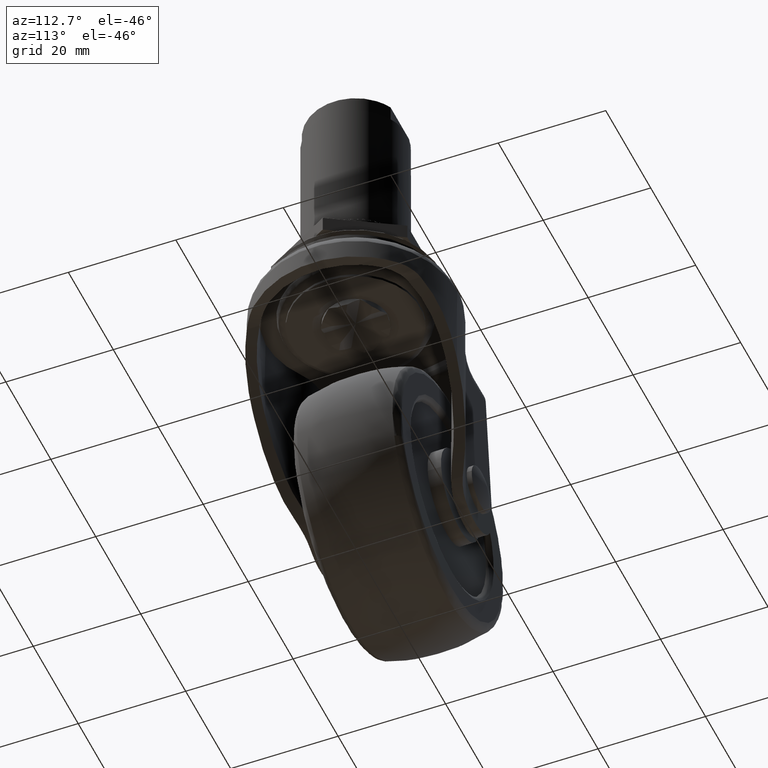
[diagram: clean part render]
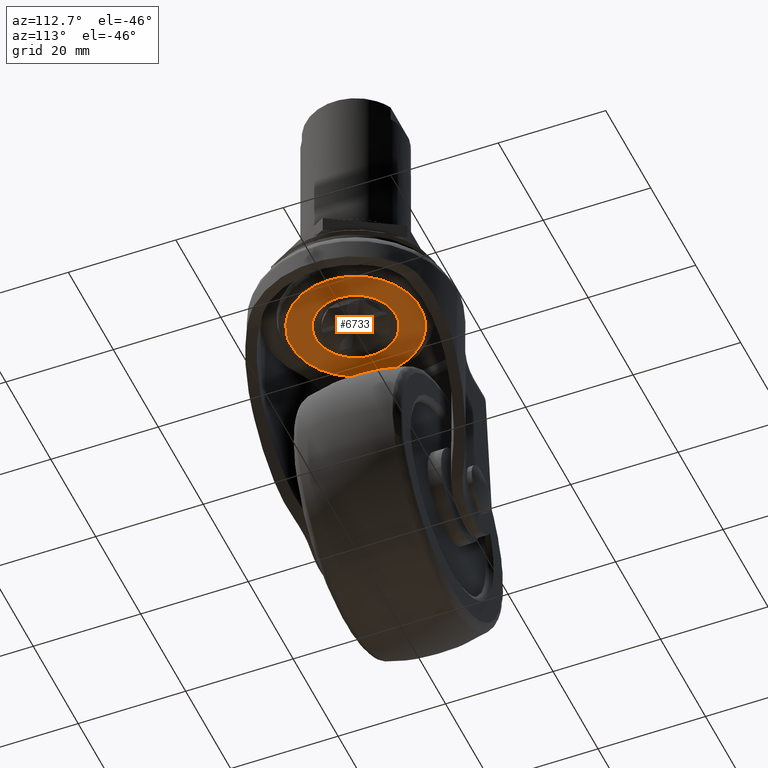
[diagram: same view with one face highlighted and labeled with its STEP entity id]
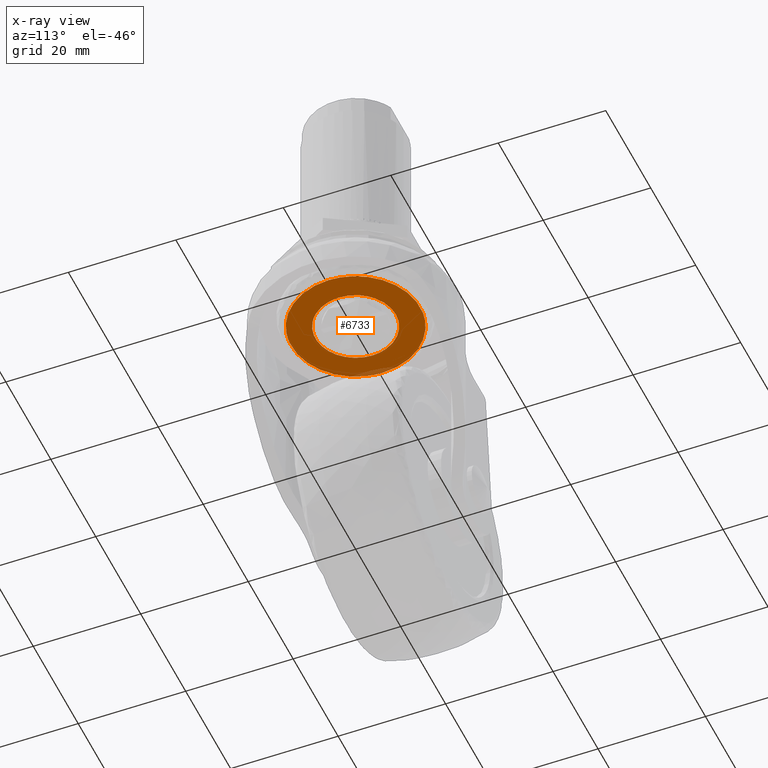
[diagram: x-ray of the same camera — body ghosted, the highlighted face saturated]
A machine part, auxiliary view. The second image highlights one B-rep face of the part: STEP entity #6733.
The next image is the same camera in x-ray: the body ghosted, the highlighted face saturated — about 2% of this face is hidden behind the body in this view.
In plain terms, the highlighted face is a freeform B-spline surface patch.
Its self-contained STEP definition (entity closure, byte-faithful):
#5310=CARTESIAN_POINT('',(0.732565572086422,-11.977611601749830,-11.843113000000100));
#5311=VERTEX_POINT('',#5310);
#5317=CARTESIAN_POINT('',(11.999993000000080,0.0,-11.843113000000100));
#5318=VERTEX_POINT('',#5317);
#5319=CARTESIAN_POINT('',(11.999993000000080,0.0,-11.843113000000100));
#5320=CARTESIAN_POINT('',(11.999993000000082,-11.288481774036123,-11.843113000000102));
#5321=CARTESIAN_POINT('',(0.732565572086422,-11.977611601749826,-11.843113000000102));
#5329=(BOUNDED_CURVE()B_SPLINE_CURVE(2,(#5319,#5320,#5321),.UNSPECIFIED.,.F.,.U.)B_SPLINE_CURVE_WITH_KNOTS((3,3),(0.500000000000000,0.739333199577076),.UNSPECIFIED.)CURVE()GEOMETRIC_REPRESENTATION_ITEM()RATIONAL_B_SPLINE_CURVE((1.0,0.719603715227791,0.976072550328044))REPRESENTATION_ITEM(''));
#5330=EDGE_CURVE('',#5318,#5311,#5329,.T.);
#5332=CARTESIAN_POINT('',(-1.416390615560061,11.916109668168700,-11.843113000000100));
#5333=VERTEX_POINT('',#5332);
#5334=CARTESIAN_POINT('',(-1.416390615560062,11.916109668168700,-11.843113000000098));
#5335=CARTESIAN_POINT('',(-0.710679231805590,11.999993000000082,-11.843113000000102));
#5336=CARTESIAN_POINT('',(0.0,11.999993000000080,-11.843113000000100));
#5337=CARTESIAN_POINT('',(11.999993000000080,11.999993000000080,-11.843113000000104));
#5338=CARTESIAN_POINT('',(11.999993000000080,0.0,-11.843113000000100));
#5346=(BOUNDED_CURVE()B_SPLINE_CURVE(2,(#5334,#5335,#5336,#5337,#5338),.UNSPECIFIED.,.F.,.U.)B_SPLINE_CURVE_WITH_KNOTS((3,2,3),(0.229562748293549,0.250000000000000,0.500000000000000),.UNSPECIFIED.)CURVE()GEOMETRIC_REPRESENTATION_ITEM()RATIONAL_B_SPLINE_CURVE((0.956027292764532,0.976056270255988,1.0,0.707106781186547,1.0))REPRESENTATION_ITEM(''));
#5347=EDGE_CURVE('',#5333,#5318,#5346,.T.);
#5395=CARTESIAN_POINT('',(-11.999993000000080,0.0,-11.843113000000100));
#5396=VERTEX_POINT('',#5395);
#5397=CARTESIAN_POINT('',(-11.999993000000080,0.0,-11.843113000000100));
#5398=CARTESIAN_POINT('',(-11.999993000000080,10.658105544894015,-11.843113000000104));
#5399=CARTESIAN_POINT('',(-1.416390615560062,11.916109668168700,-11.843113000000098));
#5407=(BOUNDED_CURVE()B_SPLINE_CURVE(2,(#5397,#5398,#5399),.UNSPECIFIED.,.F.,.U.)B_SPLINE_CURVE_WITH_KNOTS((3,3),(0.0,0.229562748293549),.UNSPECIFIED.)CURVE()GEOMETRIC_REPRESENTATION_ITEM()RATIONAL_B_SPLINE_CURVE((1.0,0.731050510930560,0.956027292764532))REPRESENTATION_ITEM(''));
#5408=EDGE_CURVE('',#5396,#5333,#5407,.T.);
#5410=CARTESIAN_POINT('',(0.732565572086422,-11.977611601749826,-11.843113000000102));
#5411=CARTESIAN_POINT('',(0.366624685121412,-11.999993000000076,-11.843113000000107));
#5412=CARTESIAN_POINT('',(0.0,-11.999993000000080,-11.843113000000100));
#5413=CARTESIAN_POINT('',(-11.999993000000080,-11.999993000000080,-11.843113000000104));
#5414=CARTESIAN_POINT('',(-11.999993000000080,0.0,-11.843113000000100));
#5422=(BOUNDED_CURVE()B_SPLINE_CURVE(2,(#5410,#5411,#5412,#5413,#5414),.UNSPECIFIED.,.F.,.U.)B_SPLINE_CURVE_WITH_KNOTS((3,2,3),(0.739333199577076,0.750000000000000,1.0),.UNSPECIFIED.)CURVE()GEOMETRIC_REPRESENTATION_ITEM()RATIONAL_B_SPLINE_CURVE((0.976072550328044,0.987503065958756,1.0,0.707106781186547,1.0))REPRESENTATION_ITEM(''));
#5423=EDGE_CURVE('',#5311,#5396,#5422,.T.);
#5714=CARTESIAN_POINT('',(5.411830282562232,-5.153376107171955,-11.843113000000050));
#5715=VERTEX_POINT('',#5714);
#5729=CARTESIAN_POINT('',(-7.472964093963480,7.105427E-015,-11.843113000000100));
#5730=VERTEX_POINT('',#5729);
#5731=CARTESIAN_POINT('',(-7.472964093963480,7.105427E-015,-11.843113000000100));
#5732=CARTESIAN_POINT('',(-7.472964093963481,-7.472964093963473,-11.843113000000100));
#5733=CARTESIAN_POINT('',(0.0,-7.472964093963473,-11.843113000000100));
#5734=CARTESIAN_POINT('',(3.203019461566976,-7.472964093963474,-11.843113000000098));
#5735=CARTESIAN_POINT('',(5.411830282562232,-5.153376107171955,-11.843113000000047));
#5743=(BOUNDED_CURVE()B_SPLINE_CURVE(2,(#5731,#5732,#5733,#5734,#5735),.UNSPECIFIED.,.F.,.U.)B_SPLINE_CURVE_WITH_KNOTS((3,2,3),(0.0,0.250000000000000,0.378690594338077),.UNSPECIFIED.)CURVE()GEOMETRIC_REPRESENTATION_ITEM()RATIONAL_B_SPLINE_CURVE((1.0,0.707106781186548,1.0,0.849229590373217,0.853681049734163))REPRESENTATION_ITEM(''));
#5744=EDGE_CURVE('',#5730,#5715,#5743,.T.);
#5746=CARTESIAN_POINT('',(4.835425967064493,5.697705507821813,-11.843113000000050));
#5747=VERTEX_POINT('',#5746);
#5748=CARTESIAN_POINT('',(4.835425967064493,5.697705507821813,-11.843113000000047));
#5749=CARTESIAN_POINT('',(2.743593585296224,7.472964093963488,-11.843113000000105));
#5750=CARTESIAN_POINT('',(0.0,7.472964093963487,-11.843113000000100));
#5751=CARTESIAN_POINT('',(-7.472964093963481,7.472964093963488,-11.843113000000100));
#5752=CARTESIAN_POINT('',(-7.472964093963480,7.105427E-015,-11.843113000000100));
#5760=(BOUNDED_CURVE()B_SPLINE_CURVE(2,(#5748,#5749,#5750,#5751,#5752),.UNSPECIFIED.,.F.,.U.)B_SPLINE_CURVE_WITH_KNOTS((3,2,3),(0.637331629832363,0.750000000000000,1.0),.UNSPECIFIED.)CURVE()GEOMETRIC_REPRESENTATION_ITEM()RATIONAL_B_SPLINE_CURVE((0.854978670801854,0.868000793612541,1.0,0.707106781186548,1.0))REPRESENTATION_ITEM(''));
#5761=EDGE_CURVE('',#5747,#5730,#5760,.T.);
#5848=CARTESIAN_POINT('',(7.472964093963480,7.105427E-015,-11.843113000000100));
#5849=VERTEX_POINT('',#5848);
#5850=CARTESIAN_POINT('',(7.472964093963480,7.105427E-015,-11.843113000000100));
#5851=CARTESIAN_POINT('',(7.472964093963480,3.459327212537313,-11.843113000000104));
#5852=CARTESIAN_POINT('',(4.835425967064493,5.697705507821813,-11.843113000000047));
#5860=(BOUNDED_CURVE()B_SPLINE_CURVE(2,(#5850,#5851,#5852),.UNSPECIFIED.,.F.,.U.)B_SPLINE_CURVE_WITH_KNOTS((3,3),(0.500000000000000,0.637331629832362),.UNSPECIFIED.)CURVE()GEOMETRIC_REPRESENTATION_ITEM()RATIONAL_B_SPLINE_CURVE((1.0,0.839105987574007,0.854978670801854))REPRESENTATION_ITEM(''));
#5861=EDGE_CURVE('',#5849,#5747,#5860,.T.);
#5863=CARTESIAN_POINT('',(5.411830282562232,-5.153376107171955,-11.843113000000047));
#5864=CARTESIAN_POINT('',(7.472964093963479,-2.988871494147370,-11.843113000000102));
#5865=CARTESIAN_POINT('',(7.472964093963480,7.105427E-015,-11.843113000000100));
#5873=(BOUNDED_CURVE()B_SPLINE_CURVE(2,(#5863,#5864,#5865),.UNSPECIFIED.,.F.,.U.)B_SPLINE_CURVE_WITH_KNOTS((3,3),(0.378690594338077,0.500000000000000),.UNSPECIFIED.)CURVE()GEOMETRIC_REPRESENTATION_ITEM()RATIONAL_B_SPLINE_CURVE((0.853681049734163,0.857877190813330,1.0))REPRESENTATION_ITEM(''));
#5874=EDGE_CURVE('',#5715,#5849,#5873,.T.);
#6716=CARTESIAN_POINT('',(13.198792704772851,-13.198500721354129,-11.843113000000100));
#6717=CARTESIAN_POINT('',(-13.198792919349451,-13.198500721354129,-11.843113000000100));
#6718=CARTESIAN_POINT('',(13.198792704772851,13.198575823162740,-11.843113000000100));
#6719=CARTESIAN_POINT('',(-13.198792919349451,13.198575823162740,-11.843113000000100));
#6720=B_SPLINE_SURFACE_WITH_KNOTS('',1,1,((#6716,#6718),(#6717,#6719)),.UNSPECIFIED.,.F.,.F.,.U.,(2,2),(2,2),(0.0,26.397585624122289),(0.0,26.397076544516871),.UNSPECIFIED.);
#6721=ORIENTED_EDGE('',*,*,#5408,.T.);
#6722=ORIENTED_EDGE('',*,*,#5347,.T.);
#6723=ORIENTED_EDGE('',*,*,#5330,.T.);
#6724=ORIENTED_EDGE('',*,*,#5423,.T.);
#6725=EDGE_LOOP('',(#6721,#6722,#6723,#6724));
#6726=FACE_OUTER_BOUND('',#6725,.T.);
#6727=ORIENTED_EDGE('',*,*,#5861,.T.);
#6728=ORIENTED_EDGE('',*,*,#5761,.T.);
#6729=ORIENTED_EDGE('',*,*,#5744,.T.);
#6730=ORIENTED_EDGE('',*,*,#5874,.T.);
#6731=EDGE_LOOP('',(#6727,#6728,#6729,#6730));
#6732=FACE_BOUND('',#6731,.T.);
#6733=ADVANCED_FACE('',(#6726,#6732),#6720,.T.);